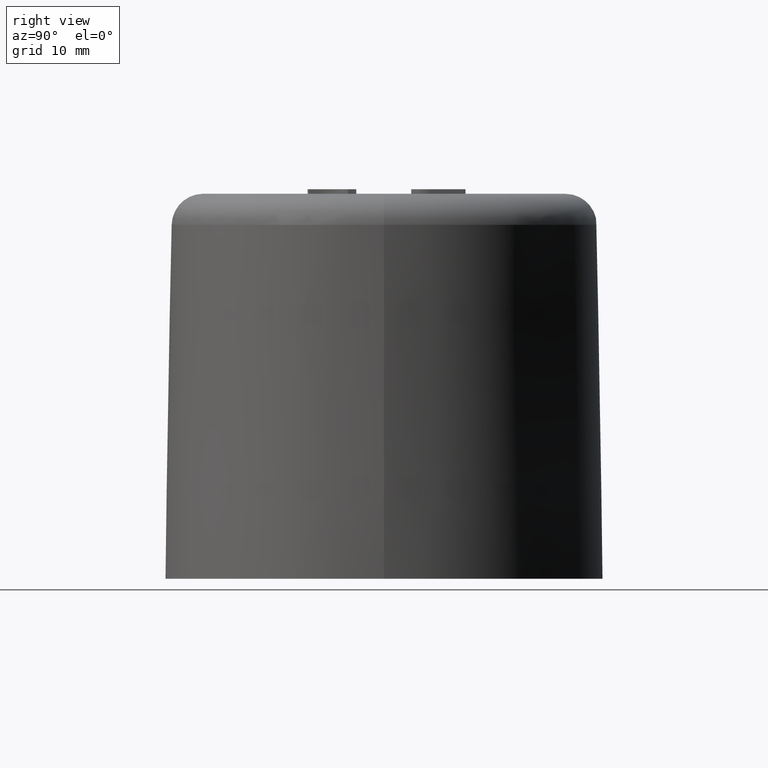
[diagram: clean part render]
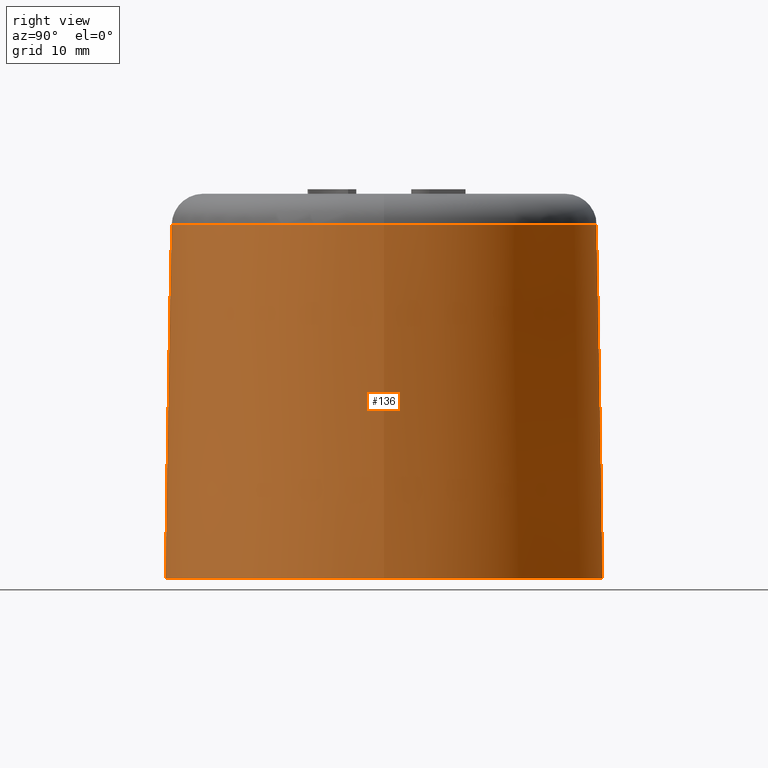
[diagram: same view with one face highlighted and labeled with its STEP entity id]
A machine part, right view. The second image highlights one B-rep face of the part: STEP entity #136.
In plain terms, the highlighted conical surface has half-angle 1 deg.
Its self-contained STEP definition (entity closure, byte-faithful):
#136 = ADVANCED_FACE( '', ( #286, #287 ), #288, .T. );
#286 = FACE_BOUND( '', #451, .T. );
#287 = FACE_OUTER_BOUND( '', #452, .T. );
#288 = CONICAL_SURFACE( '', #453, 24.1994821186741, 0.0174532925199433 );
#451 = EDGE_LOOP( '', ( #983 ) );
#452 = EDGE_LOOP( '', ( #984 ) );
#453 = AXIS2_PLACEMENT_3D( '', #985, #986, #987 );
#983 = ORIENTED_EDGE( '', *, *, #1253, .F. );
#984 = ORIENTED_EDGE( '', *, *, #1140, .T. );
#985 = CARTESIAN_POINT( '', ( 0.000000000000000, 0.000000000000000, 0.000000000000000 ) );
#986 = DIRECTION( '', ( 6.12303176911189E-017, 0.000000000000000, -1.00000000000000 ) );
#987 = DIRECTION( '', ( -1.00000000000000, 0.000000000000000, -6.12303176911189E-017 ) );
#1140 = EDGE_CURVE( '', #1367, #1367, #1368, .T. );
#1253 = EDGE_CURVE( '', #1542, #1542, #1543, .T. );
#1367 = VERTEX_POINT( '', #1772 );
#1368 = CIRCLE( '', #1773, 24.1994821186741 );
#1542 = VERTEX_POINT( '', #2116 );
#1543 = CIRCLE( '', #2117, 23.5176683713673 );
#1772 = CARTESIAN_POINT( '', ( 24.1994821186741, 0.000000000000000, 1.48174197808697E-015 ) );
#1773 = AXIS2_PLACEMENT_3D( '', #2168, #2169, #2170 );
#2116 = CARTESIAN_POINT( '', ( 23.5176683713673, 0.000000000000000, 39.0610834225305 ) );
#2117 = AXIS2_PLACEMENT_3D( '', #2267, #2268, #2269 );
#2168 = CARTESIAN_POINT( '', ( 0.000000000000000, 0.000000000000000, 0.000000000000000 ) );
#2169 = DIRECTION( '', ( -6.12303176911189E-017, 0.000000000000000, 1.00000000000000 ) );
#2170 = DIRECTION( '', ( 1.00000000000000, 0.000000000000000, 6.12303176911189E-017 ) );
#2267 = CARTESIAN_POINT( '', ( -2.39172254732084E-015, 0.000000000000000, 39.0610834225305 ) );
#2268 = DIRECTION( '', ( -6.12303176911189E-017, 0.000000000000000, 1.00000000000000 ) );
#2269 = DIRECTION( '', ( 1.00000000000000, 0.000000000000000, 6.12303176911189E-017 ) );